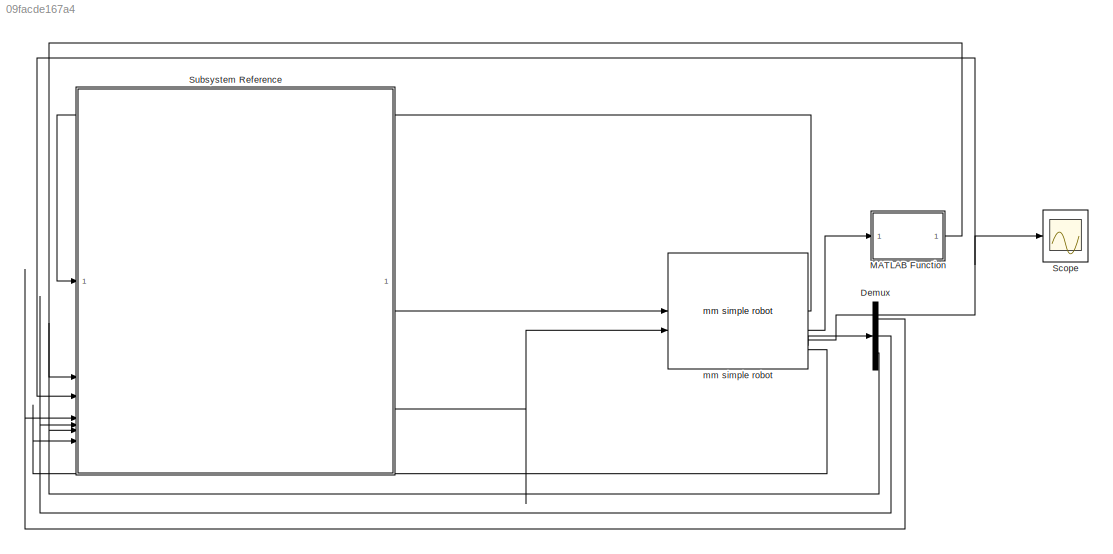
MODEL slx_09facde167a4
KIND model
CONFIG AbsTol = auto
CONFIG EnableMultiTasking = off
CONFIG FixedStep = auto
CONFIG MaxStep = auto
CONFIG MinStep = auto
CONFIG RelTol = 1e-3
CONFIG SampleTimeConstraint = Unconstrained
CONFIG SolverName = VariableStepAuto
CONFIG StartTime = 0.0
CONFIG StopTime = 2
BLOCK [Demux] Demux
  Outputs = 3
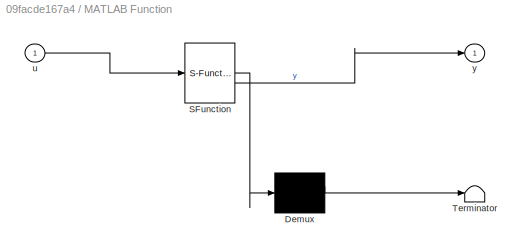
BLOCK [SubSystem] MATLAB Function
  ErrorFcn = Stateflow.Translate.translate
  PermitHierarchicalResolution = ExplicitOnly
  SFBlockType = MATLAB Function
  TreatAsAtomicUnit = on
BLOCK [Demux] MATLAB Function/ Demux 
  Outputs = 1
BLOCK [S-Function] MATLAB Function/ SFunction 
  EnableBusSupport = off
  FunctionName = sf_sfun
  PortCounts = [1 2]
  SFcnIsStateOwnerBlock = off
  SFunctionDeploymentMode = off
  Tag = Stateflow S-Function 2
BLOCK [Terminator] MATLAB Function/ Terminator 
BLOCK [Inport] MATLAB Function/u
BLOCK [Outport] MATLAB Function/y
BLOCK [Scope] Scope
  DataLoggingVariableName = ScopeData4
  Floating = off
  GraphicalSettings = {"GraphicalSettings":{"LegacySettings":true,"Style":{"Style":{"PlotType":"Auto"}}}}
  NumInputPorts = 1
  WasSavedAsWebScope = on
BLOCK [SubSystem] Subsystem Reference
  ReferencedSubsystem = StudentTemplateNew
BLOCK [Reference] mm simple robot  REF=mmuct_lib/mm simple robot  (lib defined in slx_2620ace7ce61, slx_448e9b5fb939)
  SourceBlock = mmuct_lib/mm simple robot
LINE Demux:1 -> Subsystem Reference:6
LINE Demux:2 -> Subsystem Reference:7
LINE Demux:3 -> Subsystem Reference:8
LINE MATLAB Function:1 -> Subsystem Reference:3
LINE Subsystem Reference:5 -> mm simple robot:2
LINE Subsystem Reference:6 -> mm simple robot:1
LINE mm simple robot:1 -> Subsystem Reference:1
LINE mm simple robot:2 -> MATLAB Function:1
NET mm simple robot:3 -> Scope:1, Subsystem Reference:4
LINE mm simple robot:4 -> Demux:1
LINE mm simple robot:5 -> Subsystem Reference:11
note: NET lines group one-source signal fan-out (src -> all destinations, sorted); 1:1 wires keep LINE
CHART MATLAB Function states=1 transitions=1
  STATE_LABEL 'eML_blk_kernel()'
  STATE_LABEL 'SCRIPT:\nfunction y = myFunction(u)\n    %#codegen\n    % Ensure the output is a column vector of size [3, 1]\n    y = zeros(3, 1); % Explicitly define output size as [3, 1]\n\n    % Example logic: Fill the output based on the input\n    if length(u) >= 3\n        y(1) = u(1); % Assign first element from input\n        y(2) = u(2); % Assign second element from input\n        y(3) = u(3); % Assign third elem...<+151ch>'
CHART  states=0 transitions=0
